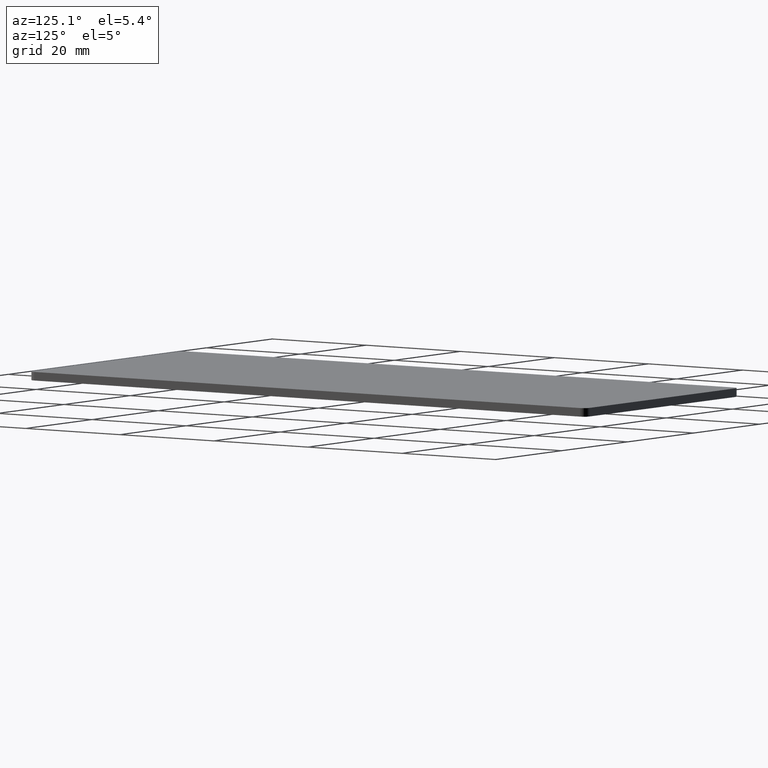
[diagram: clean part render]
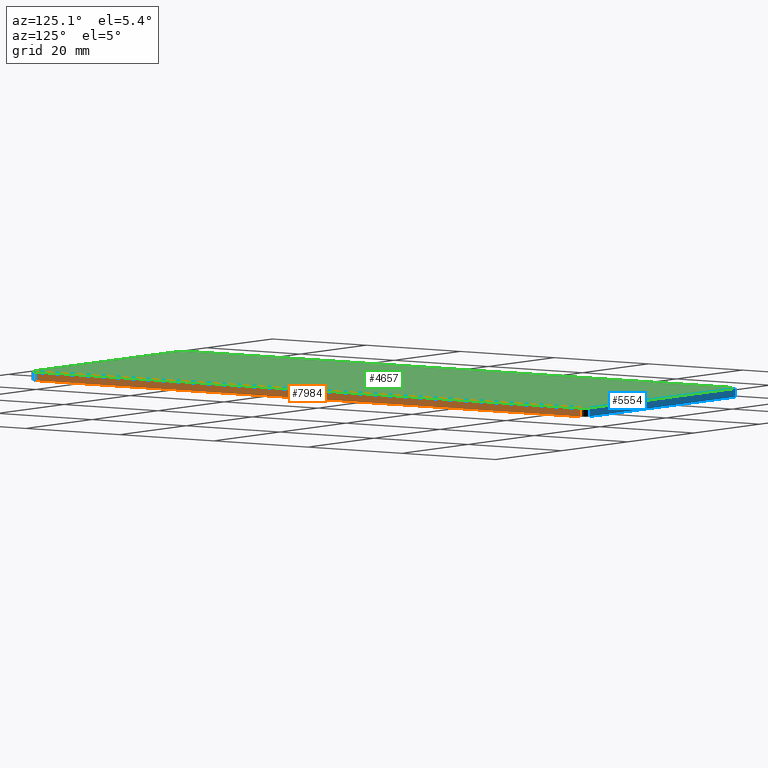
[diagram: same view with three faces highlighted in distinct colors, each labeled with its STEP entity id]
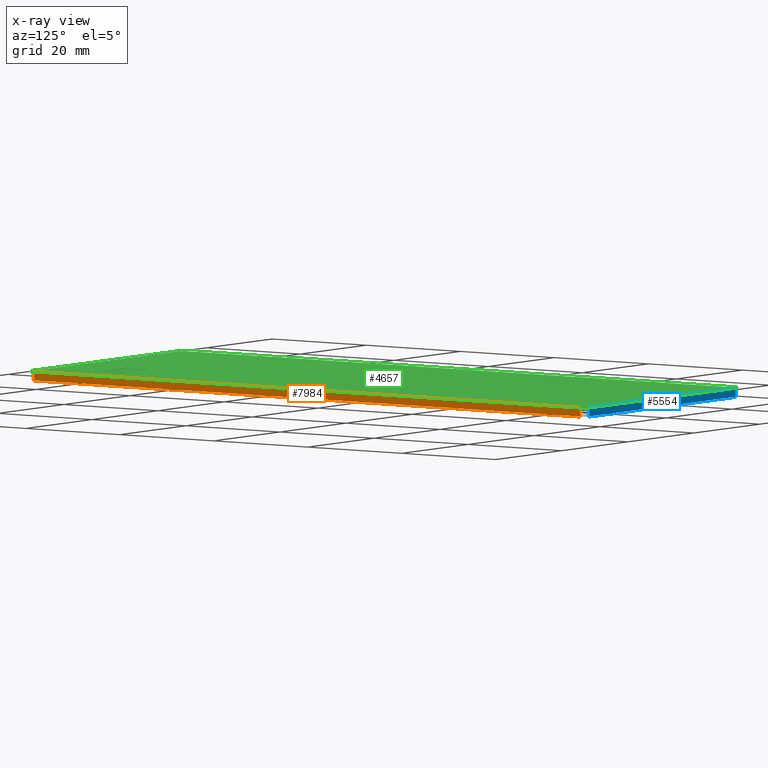
[diagram: x-ray of the same camera — body ghosted, the three highlighted faces saturated]
A machine part, auxiliary view with three faces highlighted in distinct colors.
The next image is the same camera in x-ray (body ghosted, the three faces saturated) — at least one of them is partly hidden behind the body in this view.
Their STEP definitions:

[orange] entity #7984 — the highlighted planar face has unit normal (1, 0, -0).
#3 = VECTOR ( 'NONE', #611, 1000.000000000000000 ) ;
#336 = VECTOR ( 'NONE', #11615, 1000.000000000000000 ) ;
#389 = EDGE_CURVE ( 'NONE', #4169, #10758, #7742, .T. ) ;
#611 = DIRECTION ( 'NONE',  ( 0.0000000000000000000, 0.0000000000000000000, -1.000000000000000000 ) ) ;
#906 = EDGE_CURVE ( 'NONE', #10758, #12657, #10340, .T. ) ;
#1295 = CARTESIAN_POINT ( 'NONE',  ( 23.25000000000000400, -58.05000000000001100, 0.0000000000000000000 ) ) ;
#1475 = PLANE ( 'NONE',  #3078 ) ;
#1520 = CARTESIAN_POINT ( 'NONE',  ( 23.24999999999998600, 58.04999999999997600, 1.500000000000000000 ) ) ;
#2145 = ORIENTED_EDGE ( 'NONE', *, *, #389, .T. ) ;
#2249 = LINE ( 'NONE', #1520, #11954 ) ;
#2719 = FACE_OUTER_BOUND ( 'NONE', #8372, .T. ) ;
#2775 = LINE ( 'NONE', #10045, #12663 ) ;
#3018 = CARTESIAN_POINT ( 'NONE',  ( 23.25000000000000400, -58.05000000000001100, 1.500000000000000000 ) ) ;
#3078 = AXIS2_PLACEMENT_3D ( 'NONE', #3390, #9652, #7563 ) ;
#3136 = EDGE_CURVE ( 'NONE', #9480, #12657, #2775, .T. ) ;
#3390 = CARTESIAN_POINT ( 'NONE',  ( 23.24999999999998600, 59.24999999999997900, 1.500000000000000000 ) ) ;
#3520 = DIRECTION ( 'NONE',  ( 0.0000000000000000000, -0.0000000000000000000, 1.000000000000000000 ) ) ;
#4169 = VERTEX_POINT ( 'NONE', #4609 ) ;
#4609 = CARTESIAN_POINT ( 'NONE',  ( 23.24999999999998600, 58.04999999999997600, 1.500000000000000000 ) ) ;
#6588 = EDGE_CURVE ( 'NONE', #9480, #4169, #2249, .T. ) ;
#6733 = CARTESIAN_POINT ( 'NONE',  ( 23.25000000000000400, -58.05000000000001100, 0.0000000000000000000 ) ) ;
#7563 = DIRECTION ( 'NONE',  ( -1.463901667490976400E-016, 1.000000000000000000, 0.0000000000000000000 ) ) ;
#7742 = LINE ( 'NONE', #10447, #336 ) ;
#7984 = ADVANCED_FACE ( 'NONE', ( #2719 ), #1475, .T. ) ;
#8162 = ORIENTED_EDGE ( 'NONE', *, *, #6588, .T. ) ;
#8372 = EDGE_LOOP ( 'NONE', ( #2145, #8428, #12184, #8162 ) ) ;
#8428 = ORIENTED_EDGE ( 'NONE', *, *, #906, .T. ) ;
#9480 = VERTEX_POINT ( 'NONE', #10826 ) ;
#9652 = DIRECTION ( 'NONE',  ( 1.000000000000000000, 1.463901667490976400E-016, -0.0000000000000000000 ) ) ;
#9997 = DIRECTION ( 'NONE',  ( 1.463901667490976400E-016, -1.000000000000000000, 0.0000000000000000000 ) ) ;
#10045 = CARTESIAN_POINT ( 'NONE',  ( 23.24999999999998600, 59.24999999999997900, 0.0000000000000000000 ) ) ;
#10340 = LINE ( 'NONE', #6733, #3 ) ;
#10447 = CARTESIAN_POINT ( 'NONE',  ( 23.24999999999998600, 59.24999999999997900, 1.500000000000000000 ) ) ;
#10758 = VERTEX_POINT ( 'NONE', #3018 ) ;
#10826 = CARTESIAN_POINT ( 'NONE',  ( 23.24999999999998600, 58.04999999999997600, 0.0000000000000000000 ) ) ;
#11615 = DIRECTION ( 'NONE',  ( 1.463901667490976400E-016, -1.000000000000000000, 0.0000000000000000000 ) ) ;
#11954 = VECTOR ( 'NONE', #3520, 1000.000000000000000 ) ;
#12184 = ORIENTED_EDGE ( 'NONE', *, *, #3136, .F. ) ;
#12657 = VERTEX_POINT ( 'NONE', #1295 ) ;
#12663 = VECTOR ( 'NONE', #9997, 1000.000000000000000 ) ;

[blue] entity #5554 — the highlighted planar face has unit normal (0, 1, 0).
#277 = CARTESIAN_POINT ( 'NONE',  ( -23.25000000000001400, 59.24999999999997900, 1.500000000000000000 ) ) ;
#541 = CARTESIAN_POINT ( 'NONE',  ( -22.05000000000001500, 59.24999999999997900, 0.0000000000000000000 ) ) ;
#735 = VECTOR ( 'NONE', #7203, 1000.000000000000000 ) ;
#1346 = ORIENTED_EDGE ( 'NONE', *, *, #12303, .T. ) ;
#1676 = EDGE_CURVE ( 'NONE', #11186, #10645, #4588, .T. ) ;
#1716 = CARTESIAN_POINT ( 'NONE',  ( -23.25000000000001400, 59.24999999999997900, 0.0000000000000000000 ) ) ;
#2192 = LINE ( 'NONE', #277, #5124 ) ;
#2772 = DIRECTION ( 'NONE',  ( 1.000000000000000000, 0.0000000000000000000, 0.0000000000000000000 ) ) ;
#3048 = LINE ( 'NONE', #1716, #5671 ) ;
#4056 = FACE_OUTER_BOUND ( 'NONE', #8308, .T. ) ;
#4588 = LINE ( 'NONE', #11219, #735 ) ;
#5095 = DIRECTION ( 'NONE',  ( 0.0000000000000000000, -0.0000000000000000000, 1.000000000000000000 ) ) ;
#5124 = VECTOR ( 'NONE', #11691, 1000.000000000000000 ) ;
#5286 = VERTEX_POINT ( 'NONE', #6263 ) ;
#5345 = AXIS2_PLACEMENT_3D ( 'NONE', #11244, #12361, #5095 ) ;
#5554 = ADVANCED_FACE ( 'NONE', ( #4056 ), #7905, .T. ) ;
#5671 = VECTOR ( 'NONE', #2772, 1000.000000000000000 ) ;
#5901 = CARTESIAN_POINT ( 'NONE',  ( -22.05000000000001500, 59.24999999999997900, 1.500000000000000000 ) ) ;
#6087 = EDGE_CURVE ( 'NONE', #11186, #5286, #3048, .T. ) ;
#6111 = ORIENTED_EDGE ( 'NONE', *, *, #1676, .T. ) ;
#6263 = CARTESIAN_POINT ( 'NONE',  ( 22.04999999999997200, 59.24999999999997900, 0.0000000000000000000 ) ) ;
#6757 = LINE ( 'NONE', #11734, #12401 ) ;
#7203 = DIRECTION ( 'NONE',  ( -0.0000000000000000000, -0.0000000000000000000, 1.000000000000000000 ) ) ;
#7774 = ORIENTED_EDGE ( 'NONE', *, *, #6087, .F. ) ;
#7905 = PLANE ( 'NONE',  #5345 ) ;
#8308 = EDGE_LOOP ( 'NONE', ( #7774, #6111, #1346, #8915 ) ) ;
#8809 = DIRECTION ( 'NONE',  ( -0.0000000000000000000, 0.0000000000000000000, -1.000000000000000000 ) ) ;
#8915 = ORIENTED_EDGE ( 'NONE', *, *, #10593, .T. ) ;
#10593 = EDGE_CURVE ( 'NONE', #11876, #5286, #6757, .T. ) ;
#10645 = VERTEX_POINT ( 'NONE', #5901 ) ;
#11186 = VERTEX_POINT ( 'NONE', #541 ) ;
#11219 = CARTESIAN_POINT ( 'NONE',  ( -22.05000000000001500, 59.24999999999997900, 1.500000000000000000 ) ) ;
#11244 = CARTESIAN_POINT ( 'NONE',  ( -23.25000000000001400, 59.24999999999997900, 1.500000000000000000 ) ) ;
#11691 = DIRECTION ( 'NONE',  ( 1.000000000000000000, 0.0000000000000000000, 0.0000000000000000000 ) ) ;
#11734 = CARTESIAN_POINT ( 'NONE',  ( 22.04999999999998600, 59.24999999999997900, 1.500000000000000000 ) ) ;
#11876 = VERTEX_POINT ( 'NONE', #13291 ) ;
#12303 = EDGE_CURVE ( 'NONE', #10645, #11876, #2192, .T. ) ;
#12361 = DIRECTION ( 'NONE',  ( 0.0000000000000000000, 1.000000000000000000, 0.0000000000000000000 ) ) ;
#12401 = VECTOR ( 'NONE', #8809, 1000.000000000000000 ) ;
#13291 = CARTESIAN_POINT ( 'NONE',  ( 22.04999999999997200, 59.24999999999997900, 1.500000000000000000 ) ) ;

[green] entity #4657 — the highlighted planar face has unit normal (-0, 0, 1).
#26 = EDGE_CURVE ( 'NONE', #11713, #7811, #5984, .T. ) ;
#163 = CIRCLE ( 'NONE', #12418, 1.199999999999999700 ) ;
#277 = CARTESIAN_POINT ( 'NONE',  ( -23.25000000000001400, 59.24999999999997900, 1.500000000000000000 ) ) ;
#302 = VERTEX_POINT ( 'NONE', #7084 ) ;
#336 = VECTOR ( 'NONE', #11615, 1000.000000000000000 ) ;
#389 = EDGE_CURVE ( 'NONE', #4169, #10758, #7742, .T. ) ;
#509 = EDGE_CURVE ( 'NONE', #4169, #11876, #163, .T. ) ;
#1043 = CARTESIAN_POINT ( 'NONE',  ( -23.25000000000001400, 59.24999999999997900, 1.500000000000000000 ) ) ;
#1156 = EDGE_CURVE ( 'NONE', #302, #11713, #5566, .T. ) ;
#1228 = PLANE ( 'NONE',  #12521 ) ;
#1279 = DIRECTION ( 'NONE',  ( -0.0000000000000000000, 0.0000000000000000000, 1.000000000000000000 ) ) ;
#1436 = ORIENTED_EDGE ( 'NONE', *, *, #12303, .F. ) ;
#1570 = DIRECTION ( 'NONE',  ( 1.000000000000000000, 0.0000000000000000000, 0.0000000000000000000 ) ) ;
#1930 = ORIENTED_EDGE ( 'NONE', *, *, #8079, .T. ) ;
#2192 = LINE ( 'NONE', #277, #5124 ) ;
#2466 = DIRECTION ( 'NONE',  ( 1.000000000000000000, 0.0000000000000000000, 0.0000000000000000000 ) ) ;
#2630 = CARTESIAN_POINT ( 'NONE',  ( -22.05000000000001500, 58.04999999999997600, 1.500000000000000000 ) ) ;
#2763 = ORIENTED_EDGE ( 'NONE', *, *, #26, .T. ) ;
#2877 = AXIS2_PLACEMENT_3D ( 'NONE', #7044, #11182, #11304 ) ;
#3018 = CARTESIAN_POINT ( 'NONE',  ( 23.25000000000000400, -58.05000000000001100, 1.500000000000000000 ) ) ;
#3215 = VECTOR ( 'NONE', #10115, 1000.000000000000000 ) ;
#3417 = EDGE_CURVE ( 'NONE', #10012, #302, #5213, .T. ) ;
#4169 = VERTEX_POINT ( 'NONE', #4609 ) ;
#4402 = EDGE_LOOP ( 'NONE', ( #1436, #1930, #10708, #6953, #2763, #12276, #10478, #7279 ) ) ;
#4609 = CARTESIAN_POINT ( 'NONE',  ( 23.24999999999998600, 58.04999999999997600, 1.500000000000000000 ) ) ;
#4657 = ADVANCED_FACE ( 'NONE', ( #9735 ), #1228, .T. ) ;
#4768 = DIRECTION ( 'NONE',  ( -0.0000000000000000000, 0.0000000000000000000, 1.000000000000000000 ) ) ;
#5124 = VECTOR ( 'NONE', #11691, 1000.000000000000000 ) ;
#5213 = LINE ( 'NONE', #1043, #8136 ) ;
#5566 = CIRCLE ( 'NONE', #2877, 1.199999999999999700 ) ;
#5901 = CARTESIAN_POINT ( 'NONE',  ( -22.05000000000001500, 59.24999999999997900, 1.500000000000000000 ) ) ;
#5984 = LINE ( 'NONE', #11200, #3215 ) ;
#6120 = AXIS2_PLACEMENT_3D ( 'NONE', #10463, #6242, #7325 ) ;
#6242 = DIRECTION ( 'NONE',  ( -0.0000000000000000000, 0.0000000000000000000, 1.000000000000000000 ) ) ;
#6272 = EDGE_CURVE ( 'NONE', #7811, #10758, #10199, .T. ) ;
#6952 = CARTESIAN_POINT ( 'NONE',  ( -23.25000000000001400, 58.04999999999997600, 1.500000000000000000 ) ) ;
#6953 = ORIENTED_EDGE ( 'NONE', *, *, #1156, .T. ) ;
#7044 = CARTESIAN_POINT ( 'NONE',  ( -22.05000000000000100, -58.05000000000001800, 1.500000000000000000 ) ) ;
#7084 = CARTESIAN_POINT ( 'NONE',  ( -23.25000000000000000, -58.05000000000001100, 1.500000000000000000 ) ) ;
#7279 = ORIENTED_EDGE ( 'NONE', *, *, #509, .T. ) ;
#7325 = DIRECTION ( 'NONE',  ( 1.000000000000000000, 0.0000000000000000000, 0.0000000000000000000 ) ) ;
#7500 = DIRECTION ( 'NONE',  ( 1.000000000000000000, 0.0000000000000000000, 0.0000000000000000000 ) ) ;
#7742 = LINE ( 'NONE', #10447, #336 ) ;
#7811 = VERTEX_POINT ( 'NONE', #12180 ) ;
#8079 = EDGE_CURVE ( 'NONE', #10645, #10012, #12283, .T. ) ;
#8136 = VECTOR ( 'NONE', #11380, 1000.000000000000000 ) ;
#8419 = DIRECTION ( 'NONE',  ( -0.0000000000000000000, 0.0000000000000000000, 1.000000000000000000 ) ) ;
#9416 = CARTESIAN_POINT ( 'NONE',  ( 22.04999999999998600, 58.04999999999997600, 1.500000000000000000 ) ) ;
#9428 = AXIS2_PLACEMENT_3D ( 'NONE', #2630, #4768, #1570 ) ;
#9735 = FACE_OUTER_BOUND ( 'NONE', #4402, .T. ) ;
#10012 = VERTEX_POINT ( 'NONE', #6952 ) ;
#10115 = DIRECTION ( 'NONE',  ( 1.000000000000000000, 0.0000000000000000000, 0.0000000000000000000 ) ) ;
#10199 = CIRCLE ( 'NONE', #6120, 1.199999999999999700 ) ;
#10447 = CARTESIAN_POINT ( 'NONE',  ( 23.24999999999998600, 59.24999999999997900, 1.500000000000000000 ) ) ;
#10463 = CARTESIAN_POINT ( 'NONE',  ( 22.05000000000000400, -58.05000000000001100, 1.500000000000000000 ) ) ;
#10478 = ORIENTED_EDGE ( 'NONE', *, *, #389, .F. ) ;
#10645 = VERTEX_POINT ( 'NONE', #5901 ) ;
#10708 = ORIENTED_EDGE ( 'NONE', *, *, #3417, .T. ) ;
#10758 = VERTEX_POINT ( 'NONE', #3018 ) ;
#10773 = CARTESIAN_POINT ( 'NONE',  ( -22.05000000000000100, -59.25000000000002100, 1.500000000000000000 ) ) ;
#11182 = DIRECTION ( 'NONE',  ( -0.0000000000000000000, 0.0000000000000000000, 1.000000000000000000 ) ) ;
#11200 = CARTESIAN_POINT ( 'NONE',  ( -23.25000000000000000, -59.25000000000002100, 1.500000000000000000 ) ) ;
#11304 = DIRECTION ( 'NONE',  ( 1.000000000000000000, 0.0000000000000000000, 0.0000000000000000000 ) ) ;
#11380 = DIRECTION ( 'NONE',  ( 1.171121333992781200E-016, -1.000000000000000000, 0.0000000000000000000 ) ) ;
#11615 = DIRECTION ( 'NONE',  ( 1.463901667490976400E-016, -1.000000000000000000, 0.0000000000000000000 ) ) ;
#11691 = DIRECTION ( 'NONE',  ( 1.000000000000000000, 0.0000000000000000000, 0.0000000000000000000 ) ) ;
#11713 = VERTEX_POINT ( 'NONE', #10773 ) ;
#11876 = VERTEX_POINT ( 'NONE', #13291 ) ;
#12180 = CARTESIAN_POINT ( 'NONE',  ( 22.04999999999999400, -59.25000000000002100, 1.500000000000000000 ) ) ;
#12276 = ORIENTED_EDGE ( 'NONE', *, *, #6272, .T. ) ;
#12283 = CIRCLE ( 'NONE', #9428, 1.199999999999999700 ) ;
#12303 = EDGE_CURVE ( 'NONE', #10645, #11876, #2192, .T. ) ;
#12418 = AXIS2_PLACEMENT_3D ( 'NONE', #9416, #8419, #7500 ) ;
#12521 = AXIS2_PLACEMENT_3D ( 'NONE', #12661, #1279, #2466 ) ;
#12661 = CARTESIAN_POINT ( 'NONE',  ( 0.0000000000000000000, 0.0000000000000000000, 1.500000000000000000 ) ) ;
#13291 = CARTESIAN_POINT ( 'NONE',  ( 22.04999999999997200, 59.24999999999997900, 1.500000000000000000 ) ) ;